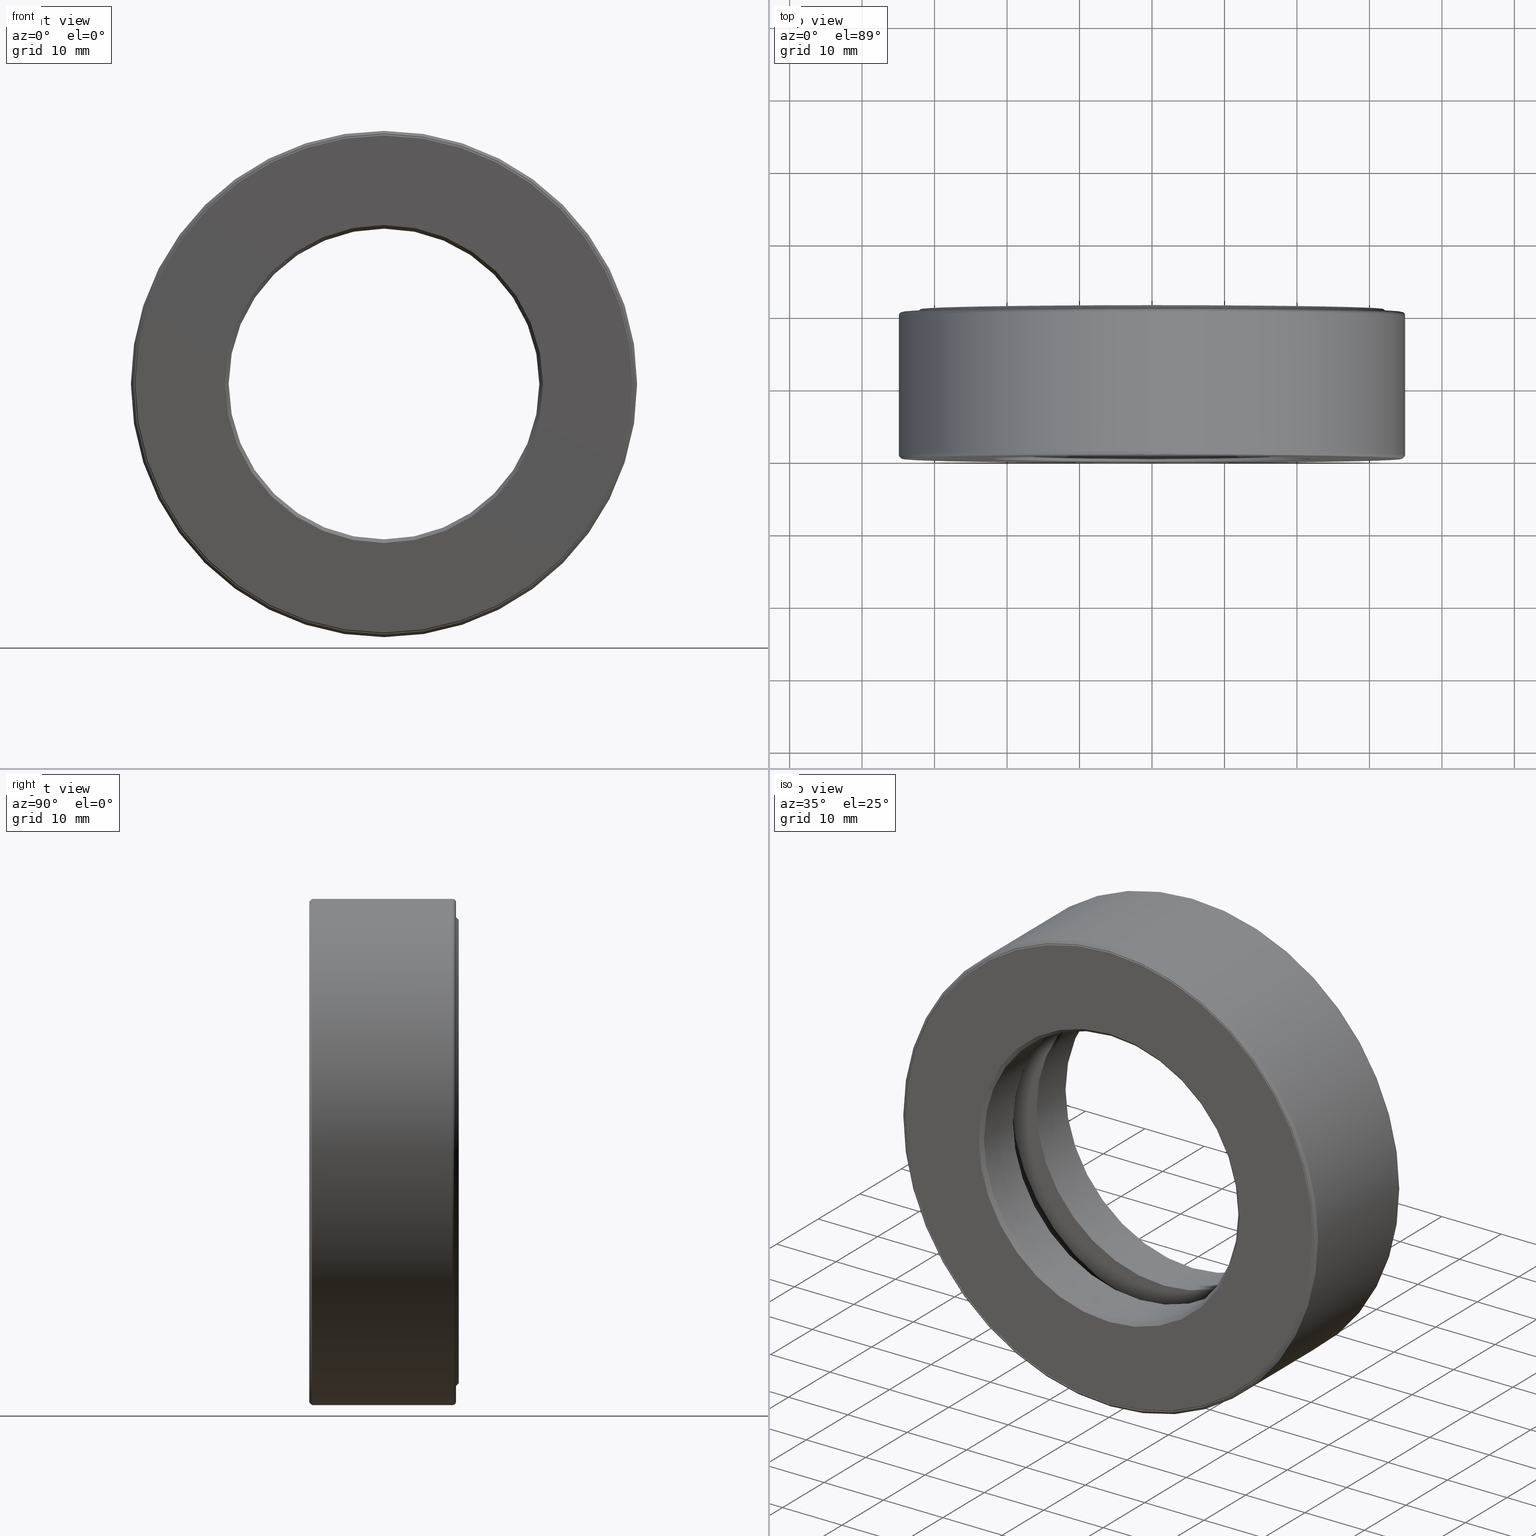
[diagram: canonical four-view strip — front | top / right | iso, engineering-drawing reading convention]
A machine part, canonical four-view strip (front | top / right | iso — engineering-drawing reading convention). The complete STEP part file that produces these views, byte-faithful:
ISO-10303-21;
HEADER;
FILE_DESCRIPTION (( 'STEP AP203' ),
    '1' );
FILE_NAME ('T-100-26.step',
    '2016-06-29T18:27:27',
    ( '' ),
    ( '' ),
    'SwSTEP 2.0',
    'SolidWorks 2016',
    '' );
FILE_SCHEMA (( 'CONFIG_CONTROL_DESIGN' ));
ENDSEC;

DATA;
#1 = FACE_OUTER_BOUND ( 'NONE', #556, .T. ) ;
#2 =( LENGTH_UNIT ( ) NAMED_UNIT ( * ) SI_UNIT ( $, .METRE. ) );
#3 = DIRECTION ( 'NONE',  ( -0.0000000000000000000, 1.000000000000000000, -0.0000000000000000000 ) ) ;
#4 = AXIS2_PLACEMENT_3D ( 'NONE', #38, #168, #274 ) ;
#5 = CARTESIAN_POINT ( 'NONE',  ( 0.0000000000000000000, 0.7974999999999998800, 1.294999999999999900 ) ) ;
#6 = DIRECTION ( 'NONE',  ( 0.0000000000000000000, 0.0000000000000000000, 1.000000000000000000 ) ) ;
#7 = LENGTH_MEASURE_WITH_UNIT ( LENGTH_MEASURE( 0.02539999999999999900 ), #2 );
#8 = PERSON_AND_ORGANIZATION_ROLE ( 'classification_officer' ) ;
#9 = ADVANCED_FACE ( 'NONE', ( #368, #179 ), #518, .F. ) ;
#10 = CIRCLE ( 'NONE', #503, 0.8437500000000000000 ) ;
#11 = AXIS2_PLACEMENT_3D ( 'NONE', #190, #492, #483 ) ;
#12 = ORIENTED_EDGE ( 'NONE', *, *, #283, .F. ) ;
#13 = DIRECTION ( 'NONE',  ( -0.0000000000000000000, 1.000000000000000000, -0.0000000000000000000 ) ) ;
#14 = DIRECTION ( 'NONE',  ( 0.0000000000000000000, 0.0000000000000000000, 1.000000000000000000 ) ) ;
#15 = COORDINATED_UNIVERSAL_TIME_OFFSET ( 5, 0, .BEHIND. ) ;
#16 = VERTEX_POINT ( 'NONE', #602 ) ;
#17 = FACE_OUTER_BOUND ( 'NONE', #603, .T. ) ;
#18 = EDGE_LOOP ( 'NONE', ( #511 ) ) ;
#19 = DIRECTION ( 'NONE',  ( 0.0000000000000000000, 0.0000000000000000000, 1.000000000000000000 ) ) ;
#20 = AXIS2_PLACEMENT_3D ( 'NONE', #184, #528, #231 ) ;
#21 = CARTESIAN_POINT ( 'NONE',  ( 6.088621761296492400E-017, 0.2937500000000001800, 0.0000000000000000000 ) ) ;
#22 = EDGE_LOOP ( 'NONE', ( #128 ) ) ;
#23 = AXIS2_PLACEMENT_3D ( 'NONE', #506, #457, #600 ) ;
#24 = VERTEX_POINT ( 'NONE', #419 ) ;
#25 = ORIENTED_EDGE ( 'NONE', *, *, #146, .F. ) ;
#26 = DIRECTION ( 'NONE',  ( 0.0000000000000000000, -1.000000000000000000, 0.0000000000000000000 ) ) ;
#27 = DIRECTION ( 'NONE',  ( 0.0000000000000000000, 0.0000000000000000000, 1.000000000000000000 ) ) ;
#28 = ORIENTED_EDGE ( 'NONE', *, *, #161, .T. ) ;
#29 = AXIS2_PLACEMENT_3D ( 'NONE', #68, #207, #113 ) ;
#30 = DIRECTION ( 'NONE',  ( -0.0000000000000000000, 1.000000000000000000, -0.0000000000000000000 ) ) ;
#31 = PERSON_AND_ORGANIZATION ( #321, #102 ) ;
#32 = FACE_OUTER_BOUND ( 'NONE', #425, .T. ) ;
#33 = CIRCLE ( 'NONE', #242, 1.347999999999999900 ) ;
#34 = DIRECTION ( 'NONE',  ( 0.0000000000000000000, 0.0000000000000000000, -1.000000000000000000 ) ) ;
#35 = ORIENTED_EDGE ( 'NONE', *, *, #114, .F. ) ;
#36 = CARTESIAN_POINT ( 'NONE',  ( 0.0000000000000000000, 0.5187499999999998200, 0.0000000000000000000 ) ) ;
#37 = CC_DESIGN_DATE_AND_TIME_ASSIGNMENT ( #596, #526, ( #317 ) ) ;
#38 = CARTESIAN_POINT ( 'NONE',  ( 0.0000000000000000000, 0.004999999999999966300, 0.0000000000000000000 ) ) ;
#39 = FACE_BOUND ( 'NONE', #226, .T. ) ;
#40 = AXIS2_PLACEMENT_3D ( 'NONE', #436, #245, #19 ) ;
#41 = CARTESIAN_POINT ( 'NONE',  ( 0.0000000000000000000, -6.189343110645596500E-017, 0.0000000000000000000 ) ) ;
#42 = CARTESIAN_POINT ( 'NONE',  ( 8.969279409578109900E-016, 0.5187499999999999300, 0.0000000000000000000 ) ) ;
#43 = FACE_BOUND ( 'NONE', #210, .T. ) ;
#44 = CARTESIAN_POINT ( 'NONE',  ( 0.0000000000000000000, 0.7774999999999998600, 1.355000000000000000 ) ) ;
#45 = FACE_OUTER_BOUND ( 'NONE', #268, .T. ) ;
#46 =( CONVERSION_BASED_UNIT ( 'INCH', #7 ) LENGTH_UNIT ( ) NAMED_UNIT ( #578 ) );
#47 = AXIS2_PLACEMENT_3D ( 'NONE', #160, #546, #311 ) ;
#48 = APPLICATION_CONTEXT ( 'configuration controlled 3d designs of mechanical parts and assemblies' ) ;
#49 = ORIENTED_EDGE ( 'NONE', *, *, #232, .F. ) ;
#50 = DIRECTION ( 'NONE',  ( 1.000000000000000000, 0.0000000000000000000, 0.0000000000000000000 ) ) ;
#51 = FACE_OUTER_BOUND ( 'NONE', #258, .T. ) ;
#52 = AXIS2_PLACEMENT_3D ( 'NONE', #460, #313, #553 ) ;
#53 = ORIENTED_EDGE ( 'NONE', *, *, #67, .T. ) ;
#54 = DIRECTION ( 'NONE',  ( 0.0000000000000000000, 0.0000000000000000000, 1.000000000000000000 ) ) ;
#55 = DIRECTION ( 'NONE',  ( 0.0000000000000000000, 0.0000000000000000000, 1.000000000000000000 ) ) ;
#56 = VERTEX_POINT ( 'NONE', #464 ) ;
#57 = EDGE_CURVE ( 'NONE', #510, #510, #237, .T. ) ;
#58 = SPHERICAL_SURFACE ( 'NONE', #187, 0.1874999999999999700 ) ;
#59 = DIRECTION ( 'NONE',  ( 0.0000000000000000000, 0.0000000000000000000, 1.000000000000000000 ) ) ;
#60 = EDGE_LOOP ( 'NONE', ( #25 ) ) ;
#61 = DIRECTION ( 'NONE',  ( -0.0000000000000000000, 1.000000000000000000, -0.0000000000000000000 ) ) ;
#62 = CIRCLE ( 'NONE', #84, 1.375000000000000000 ) ;
#63 = DIRECTION ( 'NONE',  ( -0.0000000000000000000, 1.000000000000000000, -0.0000000000000000000 ) ) ;
#64 = AXIS2_PLACEMENT_3D ( 'NONE', #76, #214, #453 ) ;
#65 = DIRECTION ( 'NONE',  ( 0.0000000000000000000, 0.0000000000000000000, 1.000000000000000000 ) ) ;
#66 = EDGE_LOOP ( 'NONE', ( #332 ) ) ;
#67 = EDGE_CURVE ( 'NONE', #386, #386, #295, .T. ) ;
#68 = CARTESIAN_POINT ( 'NONE',  ( 0.0000000000000000000, 0.0000000000000000000, 0.0000000000000000000 ) ) ;
#69 = VERTEX_POINT ( 'NONE', #137 ) ;
#70 = CIRCLE ( 'NONE', #40, 0.8437500000000000000 ) ;
#71 = DIRECTION ( 'NONE',  ( 0.0000000000000000000, 0.0000000000000000000, 1.000000000000000000 ) ) ;
#72 = ORIENTED_EDGE ( 'NONE', *, *, #209, .F. ) ;
#73 = EDGE_CURVE ( 'NONE', #583, #583, #33, .T. ) ;
#74 = DIRECTION ( 'NONE',  ( 0.0000000000000000000, 0.0000000000000000000, 1.000000000000000000 ) ) ;
#75 = EDGE_LOOP ( 'NONE', ( #35 ) ) ;
#76 = CARTESIAN_POINT ( 'NONE',  ( 0.0000000000000000000, 0.0000000000000000000, 0.0000000000000000000 ) ) ;
#77 = DIRECTION ( 'NONE',  ( -1.000000000000000000, 0.0000000000000000000, 6.982962677686263600E-015 ) ) ;
#78 =( GEOMETRIC_REPRESENTATION_CONTEXT ( 3 ) GLOBAL_UNCERTAINTY_ASSIGNED_CONTEXT ( ( #80 ) ) GLOBAL_UNIT_ASSIGNED_CONTEXT ( ( #46, #133, #605 ) ) REPRESENTATION_CONTEXT ( 'NONE', 'WORKASPACE' ) );
#79 = ORIENTED_EDGE ( 'NONE', *, *, #232, .T. ) ;
#80 = UNCERTAINTY_MEASURE_WITH_UNIT (LENGTH_MEASURE( 1.000000000000000100E-005 ), #46, 'distance_accuracy_value', 'NONE');
#81 = CARTESIAN_POINT ( 'NONE',  ( 1.158500000000000100, 0.4062499999999999400, -8.089762262099541000E-015 ) ) ;
#82 = CIRCLE ( 'NONE', #308, 1.259999999999999600 ) ;
#83 = FACE_OUTER_BOUND ( 'NONE', #18, .T. ) ;
#84 = AXIS2_PLACEMENT_3D ( 'NONE', #543, #585, #355 ) ;
#85 = ORIENTED_EDGE ( 'NONE', *, *, #73, .T. ) ;
#86 = CARTESIAN_POINT ( 'NONE',  ( 0.0000000000000000000, -6.016065055398661200E-017, 1.355000000000000000 ) ) ;
#87 = MANIFOLD_SOLID_BREP ( 'BALLS[2]', #504 ) ;
#88 = AXIS2_PLACEMENT_3D ( 'NONE', #81, #121, #77 ) ;
#89 = DIRECTION ( 'NONE',  ( 0.0000000000000000000, 0.0000000000000000000, 1.000000000000000000 ) ) ;
#90 = EDGE_LOOP ( 'NONE', ( #364 ) ) ;
#91 = ORIENTED_EDGE ( 'NONE', *, *, #126, .T. ) ;
#92 = CARTESIAN_POINT ( 'NONE',  ( 0.0000000000000000000, 0.7924999999999997600, 0.0000000000000000000 ) ) ;
#93 = PRODUCT ( 'T-100-26', 'T-100-26', '', ( #285 ) ) ;
#94 = CARTESIAN_POINT ( 'NONE',  ( 0.0000000000000000000, 0.5187499999999999300, 0.0000000000000000000 ) ) ;
#95 = PRODUCT_DEFINITION_FORMATION_WITH_SPECIFIED_SOURCE ( 'ANY', '', #93, .NOT_KNOWN. ) ;
#96 = ORIENTED_EDGE ( 'NONE', *, *, #538, .T. ) ;
#97 = MANIFOLD_SOLID_BREP ( 'Revolve2[1]', #357 ) ;
#98 = AXIS2_PLACEMENT_3D ( 'NONE', #186, #13, #530 ) ;
#99 = CIRCLE ( 'NONE', #292, 1.359999999999999900 ) ;
#100 = CARTESIAN_POINT ( 'NONE',  ( 0.0000000000000000000, 0.0000000000000000000, 0.0000000000000000000 ) ) ;
#101 = EDGE_LOOP ( 'NONE', ( #451 ) ) ;
#102 = ORGANIZATION ( 'UNSPECIFIED', 'UNSPECIFIED', '' ) ;
#103 = AXIS2_PLACEMENT_3D ( 'NONE', #145, #393, #344 ) ;
#104 = CIRCLE ( 'NONE', #98, 1.355000000000000000 ) ;
#105 = EDGE_LOOP ( 'NONE', ( #377 ) ) ;
#106 = CARTESIAN_POINT ( 'NONE',  ( 0.0000000000000000000, 0.4062499999999999400, 0.0000000000000000000 ) ) ;
#107 = CARTESIAN_POINT ( 'NONE',  ( 0.0000000000000000000, 0.0000000000000000000, 0.0000000000000000000 ) ) ;
#108 = CARTESIAN_POINT ( 'NONE',  ( 0.0000000000000000000, 0.0000000000000000000, 0.0000000000000000000 ) ) ;
#109 = CALENDAR_DATE ( 2016, 29, 6 ) ;
#110 = FACE_OUTER_BOUND ( 'NONE', #136, .T. ) ;
#111 = FACE_OUTER_BOUND ( 'NONE', #566, .T. ) ;
#112 = DIRECTION ( 'NONE',  ( 0.0000000000000000000, 0.0000000000000000000, 1.000000000000000000 ) ) ;
#113 = DIRECTION ( 'NONE',  ( 0.0000000000000000000, 0.0000000000000000000, 1.000000000000000000 ) ) ;
#114 = EDGE_CURVE ( 'NONE', #442, #442, #104, .T. ) ;
#115 = ORIENTED_EDGE ( 'NONE', *, *, #392, .F. ) ;
#116 = CARTESIAN_POINT ( 'NONE',  ( 0.0000000000000000000, 0.0000000000000000000, 0.0000000000000000000 ) ) ;
#117 = LOCAL_TIME ( 14, 27, 27.00000000000000000, #243 ) ;
#118 = DIRECTION ( 'NONE',  ( 0.0000000000000000000, 0.0000000000000000000, 1.000000000000000000 ) ) ;
#119 = SPHERICAL_SURFACE ( 'NONE', #47, 0.1874999999999999700 ) ;
#120 = CIRCLE ( 'NONE', #103, 1.294999999999999900 ) ;
#121 = DIRECTION ( 'NONE',  ( 6.982962677686263600E-015, -0.0000000000000000000, 1.000000000000000000 ) ) ;
#122 = ORIENTED_EDGE ( 'NONE', *, *, #57, .T. ) ;
#123 = CARTESIAN_POINT ( 'NONE',  ( 4.044881131049770500E-015, 0.4062499999999999400, 1.158500000000000100 ) ) ;
#124 = CIRCLE ( 'NONE', #233, 1.308500000000000200 ) ;
#125 = EDGE_LOOP ( 'NONE', ( #327 ) ) ;
#126 = EDGE_CURVE ( 'NONE', #524, #524, #563, .T. ) ;
#127 = CARTESIAN_POINT ( 'NONE',  ( 0.0000000000000000000, 0.0000000000000000000, 0.0000000000000000000 ) ) ;
#128 = ORIENTED_EDGE ( 'NONE', *, *, #507, .T. ) ;
#129 = LOCAL_TIME ( 14, 27, 27.00000000000000000, #15 ) ;
#130 = FACE_OUTER_BOUND ( 'NONE', #505, .T. ) ;
#131 = CYLINDRICAL_SURFACE ( 'NONE', #482, 1.355000000000000000 ) ;
#132 = ORIENTED_EDGE ( 'NONE', *, *, #529, .T. ) ;
#133 =( NAMED_UNIT ( * ) PLANE_ANGLE_UNIT ( ) SI_UNIT ( $, .RADIAN. ) );
#134 = AXIS2_PLACEMENT_3D ( 'NONE', #36, #595, #513 ) ;
#135 = CARTESIAN_POINT ( 'NONE',  ( 0.0000000000000000000, 0.5187499999999998200, 1.008500000000000000 ) ) ;
#136 = EDGE_LOOP ( 'NONE', ( #319 ) ) ;
#137 = CARTESIAN_POINT ( 'NONE',  ( 0.0000000000000000000, 0.01499999999999984000, 1.374999999999999300 ) ) ;
#138 = CARTESIAN_POINT ( 'NONE',  ( 0.0000000000000000000, 0.7974999999999998800, 0.0000000000000000000 ) ) ;
#139 = AXIS2_PLACEMENT_3D ( 'NONE', #363, #508, #219 ) ;
#140 = ADVANCED_FACE ( 'NONE', ( #45, #218 ), #144, .T. ) ;
#141 = PERSON_AND_ORGANIZATION_ROLE ( 'design_supplier' ) ;
#142 = CONICAL_SURFACE ( 'NONE', #290, 0.8437500000000000000, 0.7853981633974482800 ) ;
#143 = ADVANCED_FACE ( 'NONE', ( #189, #413 ), #178, .F. ) ;
#144 = PLANE ( 'NONE',  #455 ) ;
#145 = CARTESIAN_POINT ( 'NONE',  ( 0.0000000000000000000, 0.7974999999999998800, 0.0000000000000000000 ) ) ;
#146 = EDGE_CURVE ( 'NONE', #372, #372, #149, .T. ) ;
#147 = LOCAL_TIME ( 14, 27, 27.00000000000000000, #365 ) ;
#148 = FACE_OUTER_BOUND ( 'NONE', #525, .T. ) ;
#149 = CIRCLE ( 'NONE', #422, 0.8637500000000001300 ) ;
#150 = CARTESIAN_POINT ( 'NONE',  ( -1.213464339314931200E-014, 0.4062499999999999400, -1.158500000000000100 ) ) ;
#151 = DIRECTION ( 'NONE',  ( 0.0000000000000000000, -1.000000000000000000, 0.0000000000000000000 ) ) ;
#152 = AXIS2_PLACEMENT_3D ( 'NONE', #373, #174, #89 ) ;
#153 = CIRCLE ( 'NONE', #152, 1.355000000000000000 ) ;
#154 = EDGE_LOOP ( 'NONE', ( #115 ) ) ;
#155 = AXIS2_PLACEMENT_3D ( 'NONE', #537, #248, #388 ) ;
#156 = DIRECTION ( 'NONE',  ( -0.0000000000000000000, 1.000000000000000000, -0.0000000000000000000 ) ) ;
#157 = LOCAL_TIME ( 14, 27, 27.00000000000000000, #574 ) ;
#158 = FACE_OUTER_BOUND ( 'NONE', #211, .T. ) ;
#159 = CIRCLE ( 'NONE', #384, 1.349999999999999400 ) ;
#160 = CARTESIAN_POINT ( 'NONE',  ( -1.158500000000000100, 0.4062499999999999400, 0.0000000000000000000 ) ) ;
#161 = EDGE_CURVE ( 'NONE', #340, #340, #70, .T. ) ;
#162 = EDGE_LOOP ( 'NONE', ( #549 ) ) ;
#163 = CARTESIAN_POINT ( 'NONE',  ( -1.418662552022333100E-031, -6.102704083022128200E-017, 0.0000000000000000000 ) ) ;
#164 = CALENDAR_DATE ( 2016, 29, 6 ) ;
#165 = VERTEX_POINT ( 'NONE', #287 ) ;
#166 = EDGE_CURVE ( 'NONE', #568, #568, #307, .T. ) ;
#167 = ORIENTED_EDGE ( 'NONE', *, *, #410, .T. ) ;
#168 = DIRECTION ( 'NONE',  ( -0.0000000000000000000, 1.000000000000000000, -0.0000000000000000000 ) ) ;
#169 = CARTESIAN_POINT ( 'NONE',  ( 0.0000000000000000000, 0.2937500000000001800, 0.0000000000000000000 ) ) ;
#170 = VERTEX_POINT ( 'NONE', #44 ) ;
#171 = CARTESIAN_POINT ( 'NONE',  ( 0.0000000000000000000, -6.189343110645596500E-017, 1.359999999999999900 ) ) ;
#172 = FACE_OUTER_BOUND ( 'NONE', #289, .T. ) ;
#173 = EDGE_CURVE ( 'NONE', #323, #323, #120, .T. ) ;
#174 = DIRECTION ( 'NONE',  ( -0.0000000000000000000, 1.000000000000000000, -0.0000000000000000000 ) ) ;
#175 = ADVANCED_FACE ( 'NONE', ( #461, #555 ), #584, .F. ) ;
#176 = APPROVAL_ROLE ( '' ) ;
#177 = APPROVAL_DATE_TIME ( #329, #471 ) ;
#178 = PLANE ( 'NONE',  #400 ) ;
#179 = FACE_OUTER_BOUND ( 'NONE', #90, .T. ) ;
#180 = CARTESIAN_POINT ( 'NONE',  ( 0.0000000000000000000, 0.8125000000000000000, 1.259999999999999600 ) ) ;
#181 = ADVANCED_FACE ( 'NONE', ( #172, #111 ), #569, .F. ) ;
#182 = PRODUCT_DEFINITION ( 'UNKNOWN', '', #95, #456 ) ;
#183 = SECURITY_CLASSIFICATION_LEVEL ( 'unclassified' ) ;
#184 = CARTESIAN_POINT ( 'NONE',  ( 0.0000000000000000000, 0.7924999999999997600, 0.0000000000000000000 ) ) ;
#185 = ORIENTED_EDGE ( 'NONE', *, *, #217, .F. ) ;
#186 = CARTESIAN_POINT ( 'NONE',  ( 0.0000000000000000000, -6.016065055398661200E-017, 0.0000000000000000000 ) ) ;
#187 = AXIS2_PLACEMENT_3D ( 'NONE', #150, #299, #485 ) ;
#188 = SPHERICAL_SURFACE ( 'NONE', #88, 0.1874999999999999700 ) ;
#189 = FACE_BOUND ( 'NONE', #195, .T. ) ;
#190 = CARTESIAN_POINT ( 'NONE',  ( -6.471615710797515500E-016, 0.2937500000000001200, 0.0000000000000000000 ) ) ;
#191 = DIRECTION ( 'NONE',  ( 0.0000000000000000000, -0.0000000000000000000, -1.000000000000000000 ) ) ;
#192 = EDGE_LOOP ( 'NONE', ( #167 ) ) ;
#193 = APPROVAL_DATE_TIME ( #590, #439 ) ;
#194 = ORIENTED_EDGE ( 'NONE', *, *, #209, .T. ) ;
#195 = EDGE_LOOP ( 'NONE', ( #343 ) ) ;
#196 = DIRECTION ( 'NONE',  ( 0.0000000000000000000, 0.0000000000000000000, 1.000000000000000000 ) ) ;
#197 = ADVANCED_FACE ( 'NONE', ( #534, #592 ), #575, .F. ) ;
#198 = AXIS2_PLACEMENT_3D ( 'NONE', #390, #533, #196 ) ;
#199 = DIRECTION ( 'NONE',  ( -0.0000000000000000000, 1.000000000000000000, -0.0000000000000000000 ) ) ;
#200 = AXIS2_PLACEMENT_3D ( 'NONE', #42, #402, #316 ) ;
#201 = EDGE_LOOP ( 'NONE', ( #594 ) ) ;
#202 = ADVANCED_FACE ( 'NONE', ( #345, #315 ), #303, .F. ) ;
#203 = DIRECTION ( 'NONE',  ( -0.0000000000000000000, 1.000000000000000000, -0.0000000000000000000 ) ) ;
#204 = CARTESIAN_POINT ( 'NONE',  ( 0.0000000000000000000, 0.4062499999999999400, 0.0000000000000000000 ) ) ;
#205 = CONICAL_SURFACE ( 'NONE', #540, 1.359999999999999900, 0.7853981633974326200 ) ;
#206 = TOROIDAL_SURFACE ( 'NONE', #571, 1.158500000000000100, 0.1874999999999999700 ) ;
#207 = DIRECTION ( 'NONE',  ( -0.0000000000000000000, 1.000000000000000000, -0.0000000000000000000 ) ) ;
#208 = AXIS2_PLACEMENT_3D ( 'NONE', #138, #3, #476 ) ;
#209 = EDGE_CURVE ( 'NONE', #554, #554, #341, .T. ) ;
#210 = EDGE_LOOP ( 'NONE', ( #296 ) ) ;
#211 = EDGE_LOOP ( 'NONE', ( #85 ) ) ;
#212 = CC_DESIGN_PERSON_AND_ORGANIZATION_ASSIGNMENT ( #516, #376, ( #95 ) ) ;
#213 = EDGE_LOOP ( 'NONE', ( #91 ) ) ;
#214 = DIRECTION ( 'NONE',  ( -0.0000000000000000000, 1.000000000000000000, -0.0000000000000000000 ) ) ;
#215 = DIRECTION ( 'NONE',  ( -0.0000000000000000000, 1.000000000000000000, 0.0000000000000000000 ) ) ;
#216 = CIRCLE ( 'NONE', #304, 0.8637499999999999100 ) ;
#217 = EDGE_CURVE ( 'NONE', #170, #170, #479, .T. ) ;
#218 = FACE_BOUND ( 'NONE', #60, .T. ) ;
#219 = DIRECTION ( 'NONE',  ( 0.0000000000000000000, 0.0000000000000000000, 1.000000000000000000 ) ) ;
#220 = MANIFOLD_SOLID_BREP ( 'BALLS[3]', #361 ) ;
#221 = CARTESIAN_POINT ( 'NONE',  ( 0.0000000000000000000, 0.5187499999999999300, 1.347999999999999900 ) ) ;
#222 = EDGE_LOOP ( 'NONE', ( #122 ) ) ;
#223 = CALENDAR_DATE ( 2016, 29, 6 ) ;
#224 = APPLICATION_CONTEXT ( 'configuration controlled 3d designs of mechanical parts and assemblies' ) ;
#225 = CLOSED_SHELL ( 'NONE', ( #389 ) ) ;
#226 = EDGE_LOOP ( 'NONE', ( #79 ) ) ;
#227 = DATE_TIME_ROLE ( 'creation_date' ) ;
#228 = CARTESIAN_POINT ( 'NONE',  ( 0.0000000000000000000, 0.7974999999999998800, 0.0000000000000000000 ) ) ;
#229 = CARTESIAN_POINT ( 'NONE',  ( 0.0000000000000000000, 0.2937500000000001800, 0.8437500000000000000 ) ) ;
#230 = EDGE_LOOP ( 'NONE', ( #300 ) ) ;
#231 = DIRECTION ( 'NONE',  ( 0.0000000000000000000, 0.0000000000000000000, 1.000000000000000000 ) ) ;
#232 = EDGE_CURVE ( 'NONE', #544, #544, #99, .T. ) ;
#233 = AXIS2_PLACEMENT_3D ( 'NONE', #512, #598, #449 ) ;
#234 = APPROVAL_ROLE ( '' ) ;
#235 = ADVANCED_FACE ( 'NONE', ( #374, #83 ), #353, .F. ) ;
#236 = CIRCLE ( 'NONE', #134, 1.008500000000000000 ) ;
#237 = CIRCLE ( 'NONE', #20, 0.8437500000000000000 ) ;
#238 = CARTESIAN_POINT ( 'NONE',  ( 0.0000000000000000000, 0.2937500000000002300, 0.0000000000000000000 ) ) ;
#239 = CLOSED_SHELL ( 'NONE', ( #519, #235, #475, #9, #604, #140, #301, #470 ) ) ;
#240 = ADVANCED_FACE ( 'NONE', ( ), #58, .T. ) ;
#241 = DIRECTION ( 'NONE',  ( 0.0000000000000000000, -0.0000000000000000000, -1.000000000000000000 ) ) ;
#242 = AXIS2_PLACEMENT_3D ( 'NONE', #94, #481, #336 ) ;
#243 = COORDINATED_UNIVERSAL_TIME_OFFSET ( 5, 0, .BEHIND. ) ;
#244 = VERTEX_POINT ( 'NONE', #180 ) ;
#245 = DIRECTION ( 'NONE',  ( -0.0000000000000000000, 1.000000000000000000, -0.0000000000000000000 ) ) ;
#246 = CIRCLE ( 'NONE', #432, 1.374999999999999300 ) ;
#247 = ORIENTED_EDGE ( 'NONE', *, *, #266, .T. ) ;
#248 = DIRECTION ( 'NONE',  ( -0.0000000000000000000, 1.000000000000000000, -0.0000000000000000000 ) ) ;
#249 = CARTESIAN_POINT ( 'NONE',  ( 0.0000000000000000000, 0.0000000000000000000, 0.0000000000000000000 ) ) ;
#250 = EDGE_LOOP ( 'NONE', ( #284 ) ) ;
#251 = DIRECTION ( 'NONE',  ( -0.0000000000000000000, 1.000000000000000000, -0.0000000000000000000 ) ) ;
#252 = CC_DESIGN_PERSON_AND_ORGANIZATION_ASSIGNMENT ( #359, #141, ( #95 ) ) ;
#253 = APPROVAL_PERSON_ORGANIZATION ( #276, #314, #176 ) ;
#254 = VERTEX_POINT ( 'NONE', #281 ) ;
#255 = ORIENTED_EDGE ( 'NONE', *, *, #302, .F. ) ;
#256 = EDGE_CURVE ( 'NONE', #24, #24, #159, .T. ) ;
#257 = DIRECTION ( 'NONE',  ( 0.0000000000000000000, 0.0000000000000000000, -1.000000000000000000 ) ) ;
#258 = EDGE_LOOP ( 'NONE', ( #385 ) ) ;
#259 = CARTESIAN_POINT ( 'NONE',  ( 0.0000000000000000000, -5.975917486140575200E-017, 0.0000000000000000000 ) ) ;
#260 = PERSON_AND_ORGANIZATION ( #321, #102 ) ;
#261 = DIRECTION ( 'NONE',  ( 0.0000000000000000000, -1.000000000000000000, 0.0000000000000000000 ) ) ;
#262 = FACE_OUTER_BOUND ( 'NONE', #338, .T. ) ;
#263 = FACE_BOUND ( 'NONE', #125, .T. ) ;
#264 = EDGE_LOOP ( 'NONE', ( #484 ) ) ;
#265 = PLANE ( 'NONE',  #601 ) ;
#266 = EDGE_CURVE ( 'NONE', #69, #69, #246, .T. ) ;
#267 = DIRECTION ( 'NONE',  ( 0.0000000000000000000, 0.0000000000000000000, 1.000000000000000000 ) ) ;
#268 = EDGE_LOOP ( 'NONE', ( #428 ) ) ;
#269 = FACE_OUTER_BOUND ( 'NONE', #66, .T. ) ;
#270 = DIRECTION ( 'NONE',  ( -0.0000000000000000000, 1.000000000000000000, -0.0000000000000000000 ) ) ;
#271 = AXIS2_PLACEMENT_3D ( 'NONE', #163, #408, #552 ) ;
#272 = EDGE_LOOP ( 'NONE', ( #381 ) ) ;
#273 = PLANE ( 'NONE',  #565 ) ;
#274 = DIRECTION ( 'NONE',  ( 0.0000000000000000000, 0.0000000000000000000, 1.000000000000000000 ) ) ;
#275 = CARTESIAN_POINT ( 'NONE',  ( 0.0000000000000000000, 0.7244999999999999200, 1.347999999999999900 ) ) ;
#276 = PERSON_AND_ORGANIZATION ( #321, #102 ) ;
#277 = ADVANCED_FACE ( 'NONE', ( #545, #280 ), #599, .T. ) ;
#278 = FACE_BOUND ( 'NONE', #417, .T. ) ;
#279 = AXIS2_PLACEMENT_3D ( 'NONE', #238, #426, #567 ) ;
#280 = FACE_OUTER_BOUND ( 'NONE', #264, .T. ) ;
#281 = CARTESIAN_POINT ( 'NONE',  ( 0.0000000000000000000, 0.7774999999999998600, 1.375000000000000000 ) ) ;
#282 = PERSON_AND_ORGANIZATION_ROLE ( 'design_owner' ) ;
#283 = EDGE_CURVE ( 'NONE', #306, #306, #468, .T. ) ;
#284 = ORIENTED_EDGE ( 'NONE', *, *, #283, .T. ) ;
#285 = MECHANICAL_CONTEXT ( 'NONE', #224, 'mechanical' ) ;
#286 = ADVANCED_FACE ( 'NONE', ( #387, #437 ), #206, .F. ) ;
#287 = CARTESIAN_POINT ( 'NONE',  ( 0.0000000000000000000, 0.2937500000000001200, 1.355000000000000000 ) ) ;
#288 = CIRCLE ( 'NONE', #52, 1.294999999999999900 ) ;
#289 = EDGE_LOOP ( 'NONE', ( #72 ) ) ;
#290 = AXIS2_PLACEMENT_3D ( 'NONE', #92, #517, #334 ) ;
#291 = ADVANCED_FACE ( 'NONE', ( #488, #444 ), #131, .F. ) ;
#292 = AXIS2_PLACEMENT_3D ( 'NONE', #431, #63, #14 ) ;
#293 = LOCAL_TIME ( 14, 27, 27.00000000000000000, #379 ) ;
#294 = VERTEX_POINT ( 'NONE', #229 ) ;
#295 = CIRCLE ( 'NONE', #208, 1.355000000000000000 ) ;
#296 = ORIENTED_EDGE ( 'NONE', *, *, #114, .T. ) ;
#297 = DIRECTION ( 'NONE',  ( 0.0000000000000000000, 0.0000000000000000000, 1.000000000000000000 ) ) ;
#298 = AXIS2_PLACEMENT_3D ( 'NONE', #123, #318, #454 ) ;
#299 = DIRECTION ( 'NONE',  ( 1.000000000000000000, 0.0000000000000000000, -1.047444401652940600E-014 ) ) ;
#300 = ORIENTED_EDGE ( 'NONE', *, *, #589, .F. ) ;
#301 = ADVANCED_FACE ( 'NONE', ( #498, #263 ), #576, .T. ) ;
#302 = EDGE_CURVE ( 'NONE', #254, #254, #62, .T. ) ;
#303 = PLANE ( 'NONE',  #354 ) ;
#304 = AXIS2_PLACEMENT_3D ( 'NONE', #127, #558, #328 ) ;
#305 = DIRECTION ( 'NONE',  ( -0.0000000000000000000, 1.000000000000000000, -0.0000000000000000000 ) ) ;
#306 = VERTEX_POINT ( 'NONE', #515 ) ;
#307 = CIRCLE ( 'NONE', #198, 1.347999999999999900 ) ;
#308 = AXIS2_PLACEMENT_3D ( 'NONE', #587, #30, #356 ) ;
#309 = CARTESIAN_POINT ( 'NONE',  ( -1.304601928488556500E-032, -2.987958743070287600E-017, 0.0000000000000000000 ) ) ;
#310 = EDGE_LOOP ( 'NONE', ( #490 ) ) ;
#311 = DIRECTION ( 'NONE',  ( 1.000000000000000000, 0.0000000000000000000, 0.0000000000000000000 ) ) ;
#312 = CALENDAR_DATE ( 2016, 29, 6 ) ;
#313 = DIRECTION ( 'NONE',  ( -0.0000000000000000000, 1.000000000000000000, -0.0000000000000000000 ) ) ;
#314 = APPROVAL ( #469, 'UNSPECIFIED' ) ;
#315 = FACE_OUTER_BOUND ( 'NONE', #213, .T. ) ;
#316 = DIRECTION ( 'NONE',  ( 0.0000000000000000000, -0.0000000000000000000, -1.000000000000000000 ) ) ;
#317 = SECURITY_CLASSIFICATION ( '', '', #183 ) ;
#318 = DIRECTION ( 'NONE',  ( -1.000000000000000000, 0.0000000000000000000, 3.491481338843131800E-015 ) ) ;
#319 = ORIENTED_EDGE ( 'NONE', *, *, #266, .F. ) ;
#320 = PLANE ( 'NONE',  #271 ) ;
#321 = PERSON ( 'UNSPECIFIED', 'UNSPECIFIED', 'UNSPECIFIED', ('UNSPECIFIED'), ('UNSPECIFIED'), ('UNSPECIFIED') ) ;
#322 = AXIS2_PLACEMENT_3D ( 'NONE', #100, #570, #6 ) ;
#323 = VERTEX_POINT ( 'NONE', #5 ) ;
#324 = FACE_OUTER_BOUND ( 'NONE', #101, .T. ) ;
#325 = CARTESIAN_POINT ( 'NONE',  ( 0.0000000000000000000, 0.7974999999999998800, 1.355000000000000000 ) ) ;
#326 = DIRECTION ( 'NONE',  ( 0.0000000000000000000, 0.0000000000000000000, 1.000000000000000000 ) ) ;
#327 = ORIENTED_EDGE ( 'NONE', *, *, #370, .F. ) ;
#328 = DIRECTION ( 'NONE',  ( 0.0000000000000000000, 0.0000000000000000000, 1.000000000000000000 ) ) ;
#329 = DATE_AND_TIME ( #109, #147 ) ;
#330 = CC_DESIGN_SECURITY_CLASSIFICATION ( #317, ( #95 ) ) ;
#331 = ADVANCED_FACE ( 'NONE', ( #1, #450 ), #265, .F. ) ;
#332 = ORIENTED_EDGE ( 'NONE', *, *, #146, .T. ) ;
#333 = APPROVAL_ROLE ( '' ) ;
#334 = DIRECTION ( 'NONE',  ( 0.0000000000000000000, 0.0000000000000000000, 1.000000000000000000 ) ) ;
#335 = ADVANCED_FACE ( 'NONE', ( #398, #17 ), #532, .T. ) ;
#336 = DIRECTION ( 'NONE',  ( 0.0000000000000000000, 0.0000000000000000000, 1.000000000000000000 ) ) ;
#337 = AXIS2_PLACEMENT_3D ( 'NONE', #249, #61, #350 ) ;
#338 = EDGE_LOOP ( 'NONE', ( #421 ) ) ;
#339 = VERTEX_POINT ( 'NONE', #411 ) ;
#340 = VERTEX_POINT ( 'NONE', #416 ) ;
#341 = CIRCLE ( 'NONE', #559, 0.8437499999999998900 ) ;
#342 = AXIS2_PLACEMENT_3D ( 'NONE', #396, #261, #34 ) ;
#343 = ORIENTED_EDGE ( 'NONE', *, *, #173, .F. ) ;
#344 = DIRECTION ( 'NONE',  ( 0.0000000000000000000, 0.0000000000000000000, 1.000000000000000000 ) ) ;
#345 = FACE_BOUND ( 'NONE', #154, .T. ) ;
#346 = EDGE_LOOP ( 'NONE', ( #12 ) ) ;
#347 = CARTESIAN_POINT ( 'NONE',  ( 0.0000000000000000000, 0.02000000000000019800, 0.0000000000000000000 ) ) ;
#348 = DIRECTION ( 'NONE',  ( 0.0000000000000000000, 0.0000000000000000000, 1.000000000000000000 ) ) ;
#349 = ORIENTED_EDGE ( 'NONE', *, *, #217, .T. ) ;
#350 = DIRECTION ( 'NONE',  ( 0.0000000000000000000, 0.0000000000000000000, 1.000000000000000000 ) ) ;
#351 = CC_DESIGN_PERSON_AND_ORGANIZATION_ASSIGNMENT ( #260, #8, ( #317 ) ) ;
#352 = FACE_BOUND ( 'NONE', #429, .T. ) ;
#353 = TOROIDAL_SURFACE ( 'NONE', #466, 1.158500000000000100, 0.1875000000000000800 ) ;
#354 = AXIS2_PLACEMENT_3D ( 'NONE', #21, #151, #241 ) ;
#355 = DIRECTION ( 'NONE',  ( 0.0000000000000000000, 0.0000000000000000000, 1.000000000000000000 ) ) ;
#356 = DIRECTION ( 'NONE',  ( 0.0000000000000000000, 0.0000000000000000000, 1.000000000000000000 ) ) ;
#357 = CLOSED_SHELL ( 'NONE', ( #286, #197, #175, #423, #378, #143, #277, #335, #586, #531, #291, #434, #331, #382, #181, #202 ) ) ;
#358 = DIRECTION ( 'NONE',  ( -0.0000000000000000000, 1.000000000000000000, -0.0000000000000000000 ) ) ;
#359 = PERSON_AND_ORGANIZATION ( #321, #102 ) ;
#360 = FACE_OUTER_BOUND ( 'NONE', #162, .T. ) ;
#361 = CLOSED_SHELL ( 'NONE', ( #240 ) ) ;
#362 = PRODUCT_RELATED_PRODUCT_CATEGORY ( 'detail', '', ( #93 ) ) ;
#363 = CARTESIAN_POINT ( 'NONE',  ( 0.0000000000000000000, -5.975917486140575200E-017, 0.0000000000000000000 ) ) ;
#364 = ORIENTED_EDGE ( 'NONE', *, *, #161, .F. ) ;
#365 = COORDINATED_UNIVERSAL_TIME_OFFSET ( 5, 0, .BEHIND. ) ;
#366 = AXIS2_PLACEMENT_3D ( 'NONE', #523, #326, #50 ) ;
#367 = SPHERICAL_SURFACE ( 'NONE', #298, 0.1874999999999999700 ) ;
#368 = FACE_OUTER_BOUND ( 'NONE', #222, .T. ) ;
#369 = CARTESIAN_POINT ( 'NONE',  ( 0.0000000000000000000, 0.7774999999999998600, 1.294999999999999900 ) ) ;
#370 = EDGE_CURVE ( 'NONE', #244, #244, #82, .T. ) ;
#371 = APPROVAL_PERSON_ORGANIZATION ( #477, #439, #234 ) ;
#372 = VERTEX_POINT ( 'NONE', #414 ) ;
#373 = CARTESIAN_POINT ( 'NONE',  ( 0.0000000000000000000, 0.2937500000000001200, 0.0000000000000000000 ) ) ;
#374 = FACE_OUTER_BOUND ( 'NONE', #192, .T. ) ;
#375 = EDGE_LOOP ( 'NONE', ( #255 ) ) ;
#376 = PERSON_AND_ORGANIZATION_ROLE ( 'creator' ) ;
#377 = ORIENTED_EDGE ( 'NONE', *, *, #589, .T. ) ;
#378 = ADVANCED_FACE ( 'NONE', ( #324, #360 ), #502, .F. ) ;
#379 = COORDINATED_UNIVERSAL_TIME_OFFSET ( 5, 0, .BEHIND. ) ;
#380 = SHAPE_DEFINITION_REPRESENTATION ( #480, #582 ) ;
#381 = ORIENTED_EDGE ( 'NONE', *, *, #67, .F. ) ;
#382 = ADVANCED_FACE ( 'NONE', ( #391, #541 ), #405, .F. ) ;
#383 = CARTESIAN_POINT ( 'NONE',  ( 0.0000000000000000000, 0.8125000000000000000, 0.0000000000000000000 ) ) ;
#384 = AXIS2_PLACEMENT_3D ( 'NONE', #259, #495, #401 ) ;
#385 = ORIENTED_EDGE ( 'NONE', *, *, #166, .F. ) ;
#386 = VERTEX_POINT ( 'NONE', #325 ) ;
#387 = FACE_OUTER_BOUND ( 'NONE', #310, .T. ) ;
#388 = DIRECTION ( 'NONE',  ( 0.0000000000000000000, 0.0000000000000000000, 1.000000000000000000 ) ) ;
#389 = ADVANCED_FACE ( 'NONE', ( ), #119, .T. ) ;
#390 = CARTESIAN_POINT ( 'NONE',  ( 0.0000000000000000000, 0.7244999999999999200, 0.0000000000000000000 ) ) ;
#391 = FACE_OUTER_BOUND ( 'NONE', #230, .T. ) ;
#392 = EDGE_CURVE ( 'NONE', #294, #294, #10, .T. ) ;
#393 = DIRECTION ( 'NONE',  ( -0.0000000000000000000, 1.000000000000000000, -0.0000000000000000000 ) ) ;
#394 = CC_DESIGN_APPROVAL ( #314, ( #182 ) ) ;
#395 = DATE_AND_TIME ( #223, #293 ) ;
#396 = CARTESIAN_POINT ( 'NONE',  ( 0.0000000000000000000, 0.02000000000000019800, 0.0000000000000000000 ) ) ;
#397 = FACE_OUTER_BOUND ( 'NONE', #491, .T. ) ;
#398 = FACE_OUTER_BOUND ( 'NONE', #375, .T. ) ;
#399 = EDGE_LOOP ( 'NONE', ( #349 ) ) ;
#400 = AXIS2_PLACEMENT_3D ( 'NONE', #228, #564, #191 ) ;
#401 = DIRECTION ( 'NONE',  ( 0.0000000000000000000, 0.0000000000000000000, 1.000000000000000000 ) ) ;
#402 = DIRECTION ( 'NONE',  ( 0.0000000000000000000, -1.000000000000000000, 0.0000000000000000000 ) ) ;
#403 = ORIENTED_EDGE ( 'NONE', *, *, #256, .F. ) ;
#404 = CARTESIAN_POINT ( 'NONE',  ( 0.0000000000000000000, 0.7774999999999998600, 0.0000000000000000000 ) ) ;
#405 = CONICAL_SURFACE ( 'NONE', #342, 0.8437499999999998900, 0.7853981633974449500 ) ;
#406 = DIRECTION ( 'NONE',  ( 0.0000000000000000000, 0.0000000000000000000, 1.000000000000000000 ) ) ;
#407 = ORIENTED_EDGE ( 'NONE', *, *, #256, .T. ) ;
#408 = DIRECTION ( 'NONE',  ( -0.0000000000000000000, 1.000000000000000000, 0.0000000000000000000 ) ) ;
#409 = PLANE ( 'NONE',  #23 ) ;
#410 = EDGE_CURVE ( 'NONE', #420, #420, #236, .T. ) ;
#411 = CARTESIAN_POINT ( 'NONE',  ( 0.0000000000000000000, 0.0000000000000000000, 0.8637499999999999100 ) ) ;
#412 = VERTEX_POINT ( 'NONE', #369 ) ;
#413 = FACE_OUTER_BOUND ( 'NONE', #473, .T. ) ;
#414 = CARTESIAN_POINT ( 'NONE',  ( 0.0000000000000000000, 0.8125000000000000000, 0.8637500000000001300 ) ) ;
#415 = ADVANCED_FACE ( 'NONE', ( ), #367, .T. ) ;
#416 = CARTESIAN_POINT ( 'NONE',  ( 0.0000000000000000000, 0.5187499999999999300, 0.8437500000000000000 ) ) ;
#417 = EDGE_LOOP ( 'NONE', ( #535 ) ) ;
#418 = APPLICATION_PROTOCOL_DEFINITION ( 'international standard', 'config_control_design', 1994, #48 ) ;
#419 = CARTESIAN_POINT ( 'NONE',  ( 0.0000000000000000000, -5.975917486140575200E-017, 1.349999999999999400 ) ) ;
#420 = VERTEX_POINT ( 'NONE', #135 ) ;
#421 = ORIENTED_EDGE ( 'NONE', *, *, #435, .F. ) ;
#422 = AXIS2_PLACEMENT_3D ( 'NONE', #573, #199, #297 ) ;
#423 = ADVANCED_FACE ( 'NONE', ( #130, #487 ), #273, .F. ) ;
#424 = CC_DESIGN_DATE_AND_TIME_ASSIGNMENT ( #486, #227, ( #182 ) ) ;
#425 = EDGE_LOOP ( 'NONE', ( #514 ) ) ;
#426 = DIRECTION ( 'NONE',  ( -0.0000000000000000000, 1.000000000000000000, -0.0000000000000000000 ) ) ;
#427 = FACE_BOUND ( 'NONE', #465, .T. ) ;
#428 = ORIENTED_EDGE ( 'NONE', *, *, #370, .T. ) ;
#429 = EDGE_LOOP ( 'NONE', ( #407 ) ) ;
#430 = DIRECTION ( 'NONE',  ( -0.0000000000000000000, 1.000000000000000000, -0.0000000000000000000 ) ) ;
#431 = CARTESIAN_POINT ( 'NONE',  ( 0.0000000000000000000, -6.189343110645596500E-017, 0.0000000000000000000 ) ) ;
#432 = AXIS2_PLACEMENT_3D ( 'NONE', #588, #203, #27 ) ;
#433 = EDGE_LOOP ( 'NONE', ( #447 ) ) ;
#434 = ADVANCED_FACE ( 'NONE', ( #262, #352 ), #459, .T. ) ;
#435 = EDGE_CURVE ( 'NONE', #16, #16, #496, .T. ) ;
#436 = CARTESIAN_POINT ( 'NONE',  ( 0.0000000000000000000, 0.5187499999999999300, 0.0000000000000000000 ) ) ;
#437 = FACE_OUTER_BOUND ( 'NONE', #250, .T. ) ;
#438 = CARTESIAN_POINT ( 'NONE',  ( 0.0000000000000000000, 0.2937500000000001200, 0.0000000000000000000 ) ) ;
#439 = APPROVAL ( #474, 'UNSPECIFIED' ) ;
#440 = EDGE_LOOP ( 'NONE', ( #96 ) ) ;
#441 = DIRECTION ( 'NONE',  ( 0.0000000000000000000, 0.0000000000000000000, 1.000000000000000000 ) ) ;
#442 = VERTEX_POINT ( 'NONE', #86 ) ;
#443 = AXIS2_PLACEMENT_3D ( 'NONE', #500, #501, #71 ) ;
#444 = FACE_OUTER_BOUND ( 'NONE', #593, .T. ) ;
#445 = DIRECTION ( 'NONE',  ( -0.0000000000000000000, 1.000000000000000000, 0.0000000000000000000 ) ) ;
#446 = DIRECTION ( 'NONE',  ( 0.0000000000000000000, 0.0000000000000000000, 1.000000000000000000 ) ) ;
#447 = ORIENTED_EDGE ( 'NONE', *, *, #538, .F. ) ;
#448 = PERSON_AND_ORGANIZATION ( #321, #102 ) ;
#449 = DIRECTION ( 'NONE',  ( 0.0000000000000000000, 0.0000000000000000000, 1.000000000000000000 ) ) ;
#450 = FACE_BOUND ( 'NONE', #105, .T. ) ;
#451 = ORIENTED_EDGE ( 'NONE', *, *, #507, .F. ) ;
#452 = CC_DESIGN_APPROVAL ( #471, ( #95 ) ) ;
#453 = DIRECTION ( 'NONE',  ( 0.0000000000000000000, 0.0000000000000000000, 1.000000000000000000 ) ) ;
#454 = DIRECTION ( 'NONE',  ( -3.491481338843131800E-015, 0.0000000000000000000, -1.000000000000000000 ) ) ;
#455 = AXIS2_PLACEMENT_3D ( 'NONE', #383, #522, #55 ) ;
#456 = DESIGN_CONTEXT ( 'detailed design', #48, 'design' ) ;
#457 = DIRECTION ( 'NONE',  ( 0.0000000000000000000, -1.000000000000000000, 0.0000000000000000000 ) ) ;
#458 = CC_DESIGN_APPROVAL ( #439, ( #317 ) ) ;
#459 = CONICAL_SURFACE ( 'NONE', #139, 1.349999999999999400, 0.7853981633974813600 ) ;
#460 = CARTESIAN_POINT ( 'NONE',  ( 0.0000000000000000000, 0.7774999999999998600, 0.0000000000000000000 ) ) ;
#461 = FACE_OUTER_BOUND ( 'NONE', #433, .T. ) ;
#462 = CARTESIAN_POINT ( 'NONE',  ( 0.0000000000000000000, 0.7924999999999997600, 0.8437500000000000000 ) ) ;
#463 = ADVANCED_FACE ( 'NONE', ( ), #188, .T. ) ;
#464 = CARTESIAN_POINT ( 'NONE',  ( 0.0000000000000000000, 0.5187499999999998200, 1.308500000000000200 ) ) ;
#465 = EDGE_LOOP ( 'NONE', ( #132 ) ) ;
#466 = AXIS2_PLACEMENT_3D ( 'NONE', #106, #430, #348 ) ;
#467 = CARTESIAN_POINT ( 'NONE',  ( 0.0000000000000000000, 0.2937500000000002300, 1.008500000000000000 ) ) ;
#468 = CIRCLE ( 'NONE', #494, 1.308500000000000200 ) ;
#469 = APPROVAL_STATUS ( 'not_yet_approved' ) ;
#470 = ADVANCED_FACE ( 'NONE', ( #158, #51 ), #597, .T. ) ;
#471 = APPROVAL ( #562, 'UNSPECIFIED' ) ;
#472 = DIRECTION ( 'NONE',  ( -0.0000000000000000000, 1.000000000000000000, -0.0000000000000000000 ) ) ;
#473 = EDGE_LOOP ( 'NONE', ( #53 ) ) ;
#474 = APPROVAL_STATUS ( 'not_yet_approved' ) ;
#475 = ADVANCED_FACE ( 'NONE', ( #478, #32 ), #409, .T. ) ;
#476 = DIRECTION ( 'NONE',  ( 0.0000000000000000000, 0.0000000000000000000, 1.000000000000000000 ) ) ;
#477 = PERSON_AND_ORGANIZATION ( #321, #102 ) ;
#478 = FACE_BOUND ( 'NONE', #548, .T. ) ;
#479 = CIRCLE ( 'NONE', #155, 1.355000000000000000 ) ;
#480 = PRODUCT_DEFINITION_SHAPE ( 'NONE', 'NONE',  #182 ) ;
#481 = DIRECTION ( 'NONE',  ( -0.0000000000000000000, 1.000000000000000000, -0.0000000000000000000 ) ) ;
#482 = AXIS2_PLACEMENT_3D ( 'NONE', #108, #542, #118 ) ;
#483 = DIRECTION ( 'NONE',  ( 0.0000000000000000000, -0.0000000000000000000, -1.000000000000000000 ) ) ;
#484 = ORIENTED_EDGE ( 'NONE', *, *, #302, .T. ) ;
#485 = DIRECTION ( 'NONE',  ( 1.047444401652940600E-014, 0.0000000000000000000, 1.000000000000000000 ) ) ;
#486 = DATE_AND_TIME ( #312, #157 ) ;
#487 = FACE_BOUND ( 'NONE', #22, .T. ) ;
#488 = FACE_OUTER_BOUND ( 'NONE', #75, .T. ) ;
#489 = MANIFOLD_SOLID_BREP ( 'BALLS[1]', #521 ) ;
#490 = ORIENTED_EDGE ( 'NONE', *, *, #126, .F. ) ;
#491 = EDGE_LOOP ( 'NONE', ( #572 ) ) ;
#492 = DIRECTION ( 'NONE',  ( 0.0000000000000000000, -1.000000000000000000, 0.0000000000000000000 ) ) ;
#493 = APPROVAL_DATE_TIME ( #395, #314 ) ;
#494 = AXIS2_PLACEMENT_3D ( 'NONE', #438, #156, #74 ) ;
#495 = DIRECTION ( 'NONE',  ( -0.0000000000000000000, 1.000000000000000000, -0.0000000000000000000 ) ) ;
#496 = CIRCLE ( 'NONE', #4, 1.355000000000000000 ) ;
#497 = CC_DESIGN_PERSON_AND_ORGANIZATION_ASSIGNMENT ( #448, #520, ( #182 ) ) ;
#498 = FACE_OUTER_BOUND ( 'NONE', #201, .T. ) ;
#499 = MANIFOLD_SOLID_BREP ( 'Revolve2[2]', #239 ) ;
#500 = CARTESIAN_POINT ( 'NONE',  ( 0.0000000000000000000, 0.7774999999999998600, 0.0000000000000000000 ) ) ;
#501 = DIRECTION ( 'NONE',  ( -0.0000000000000000000, 1.000000000000000000, -0.0000000000000000000 ) ) ;
#502 = CYLINDRICAL_SURFACE ( 'NONE', #536, 1.294999999999999900 ) ;
#503 = AXIS2_PLACEMENT_3D ( 'NONE', #169, #270, #406 ) ;
#504 = CLOSED_SHELL ( 'NONE', ( #463 ) ) ;
#505 = EDGE_LOOP ( 'NONE', ( #185 ) ) ;
#506 = CARTESIAN_POINT ( 'NONE',  ( -2.150449388032378900E-016, 0.5187499999999999300, 0.0000000000000000000 ) ) ;
#507 = EDGE_CURVE ( 'NONE', #412, #412, #288, .T. ) ;
#508 = DIRECTION ( 'NONE',  ( -0.0000000000000000000, 1.000000000000000000, -0.0000000000000000000 ) ) ;
#509 = PERSON_AND_ORGANIZATION ( #321, #102 ) ;
#510 = VERTEX_POINT ( 'NONE', #462 ) ;
#511 = ORIENTED_EDGE ( 'NONE', *, *, #529, .F. ) ;
#512 = CARTESIAN_POINT ( 'NONE',  ( 0.0000000000000000000, 0.5187499999999998200, 0.0000000000000000000 ) ) ;
#513 = DIRECTION ( 'NONE',  ( 0.0000000000000000000, 0.0000000000000000000, 1.000000000000000000 ) ) ;
#514 = ORIENTED_EDGE ( 'NONE', *, *, #410, .F. ) ;
#515 = CARTESIAN_POINT ( 'NONE',  ( 0.0000000000000000000, 0.2937500000000001200, 1.308500000000000200 ) ) ;
#516 = PERSON_AND_ORGANIZATION ( #321, #102 ) ;
#517 = DIRECTION ( 'NONE',  ( -0.0000000000000000000, 1.000000000000000000, -0.0000000000000000000 ) ) ;
#518 = CYLINDRICAL_SURFACE ( 'NONE', #322, 0.8437500000000000000 ) ;
#519 = ADVANCED_FACE ( 'NONE', ( #427, #397 ), #547, .T. ) ;
#520 = PERSON_AND_ORGANIZATION_ROLE ( 'creator' ) ;
#521 = CLOSED_SHELL ( 'NONE', ( #415 ) ) ;
#522 = DIRECTION ( 'NONE',  ( -0.0000000000000000000, 1.000000000000000000, 0.0000000000000000000 ) ) ;
#523 = CARTESIAN_POINT ( 'NONE',  ( 0.0000000000000000000, 0.0000000000000000000, 0.0000000000000000000 ) ) ;
#524 = VERTEX_POINT ( 'NONE', #467 ) ;
#525 = EDGE_LOOP ( 'NONE', ( #49 ) ) ;
#526 = DATE_TIME_ROLE ( 'classification_date' ) ;
#527 = MANIFOLD_SOLID_BREP ( 'Revolve3', #225 ) ;
#528 = DIRECTION ( 'NONE',  ( -0.0000000000000000000, 1.000000000000000000, -0.0000000000000000000 ) ) ;
#529 = EDGE_CURVE ( 'NONE', #56, #56, #124, .T. ) ;
#530 = DIRECTION ( 'NONE',  ( 0.0000000000000000000, 0.0000000000000000000, 1.000000000000000000 ) ) ;
#531 = ADVANCED_FACE ( 'NONE', ( #148, #43 ), #320, .F. ) ;
#532 = CYLINDRICAL_SURFACE ( 'NONE', #29, 1.374999999999999800 ) ;
#533 = DIRECTION ( 'NONE',  ( -0.0000000000000000000, 1.000000000000000000, -0.0000000000000000000 ) ) ;
#534 = FACE_BOUND ( 'NONE', #346, .T. ) ;
#535 = ORIENTED_EDGE ( 'NONE', *, *, #57, .F. ) ;
#536 = AXIS2_PLACEMENT_3D ( 'NONE', #116, #358, #446 ) ;
#537 = CARTESIAN_POINT ( 'NONE',  ( 0.0000000000000000000, 0.7774999999999998600, 0.0000000000000000000 ) ) ;
#538 = EDGE_CURVE ( 'NONE', #165, #165, #153, .T. ) ;
#539 = APPROVAL_PERSON_ORGANIZATION ( #31, #471, #333 ) ;
#540 = AXIS2_PLACEMENT_3D ( 'NONE', #41, #472, #54 ) ;
#541 = FACE_BOUND ( 'NONE', #551, .T. ) ;
#542 = DIRECTION ( 'NONE',  ( -0.0000000000000000000, 1.000000000000000000, -0.0000000000000000000 ) ) ;
#543 = CARTESIAN_POINT ( 'NONE',  ( 0.0000000000000000000, 0.7774999999999998600, 0.0000000000000000000 ) ) ;
#544 = VERTEX_POINT ( 'NONE', #171 ) ;
#545 = FACE_OUTER_BOUND ( 'NONE', #272, .T. ) ;
#546 = DIRECTION ( 'NONE',  ( 0.0000000000000000000, 0.0000000000000000000, -1.000000000000000000 ) ) ;
#547 = PLANE ( 'NONE',  #200 ) ;
#548 = EDGE_LOOP ( 'NONE', ( #28 ) ) ;
#549 = ORIENTED_EDGE ( 'NONE', *, *, #173, .T. ) ;
#550 = AXIS2_PLACEMENT_3D ( 'NONE', #107, #251, #59 ) ;
#551 = EDGE_LOOP ( 'NONE', ( #194 ) ) ;
#552 = DIRECTION ( 'NONE',  ( 0.0000000000000000000, 0.0000000000000000000, 1.000000000000000000 ) ) ;
#553 = DIRECTION ( 'NONE',  ( 0.0000000000000000000, 0.0000000000000000000, 1.000000000000000000 ) ) ;
#554 = VERTEX_POINT ( 'NONE', #557 ) ;
#555 = FACE_OUTER_BOUND ( 'NONE', #399, .T. ) ;
#556 = EDGE_LOOP ( 'NONE', ( #403 ) ) ;
#557 = CARTESIAN_POINT ( 'NONE',  ( 0.0000000000000000000, 0.02000000000000019800, 0.8437499999999998900 ) ) ;
#558 = DIRECTION ( 'NONE',  ( -0.0000000000000000000, 1.000000000000000000, -0.0000000000000000000 ) ) ;
#559 = AXIS2_PLACEMENT_3D ( 'NONE', #347, #579, #65 ) ;
#560 = ORIENTED_EDGE ( 'NONE', *, *, #392, .T. ) ;
#561 = APPLICATION_PROTOCOL_DEFINITION ( 'international standard', 'config_control_design', 1994, #224 ) ;
#562 = APPROVAL_STATUS ( 'not_yet_approved' ) ;
#563 = CIRCLE ( 'NONE', #279, 1.008500000000000000 ) ;
#564 = DIRECTION ( 'NONE',  ( 0.0000000000000000000, -1.000000000000000000, 0.0000000000000000000 ) ) ;
#565 = AXIS2_PLACEMENT_3D ( 'NONE', #404, #215, #267 ) ;
#566 = EDGE_LOOP ( 'NONE', ( #560 ) ) ;
#567 = DIRECTION ( 'NONE',  ( 0.0000000000000000000, 0.0000000000000000000, 1.000000000000000000 ) ) ;
#568 = VERTEX_POINT ( 'NONE', #275 ) ;
#569 = CYLINDRICAL_SURFACE ( 'NONE', #337, 0.8437500000000000000 ) ;
#570 = DIRECTION ( 'NONE',  ( -0.0000000000000000000, 1.000000000000000000, -0.0000000000000000000 ) ) ;
#571 = AXIS2_PLACEMENT_3D ( 'NONE', #204, #305, #112 ) ;
#572 = ORIENTED_EDGE ( 'NONE', *, *, #73, .F. ) ;
#573 = CARTESIAN_POINT ( 'NONE',  ( 0.0000000000000000000, 0.8125000000000000000, 0.0000000000000000000 ) ) ;
#574 = COORDINATED_UNIVERSAL_TIME_OFFSET ( 5, 0, .BEHIND. ) ;
#575 = PLANE ( 'NONE',  #11 ) ;
#576 = CONICAL_SURFACE ( 'NONE', #581, 1.259999999999999600, 0.7853981633974490600 ) ;
#577 = CC_DESIGN_PERSON_AND_ORGANIZATION_ASSIGNMENT ( #509, #282, ( #93 ) ) ;
#578 = DIMENSIONAL_EXPONENTS ( 1.000000000000000000, 0.0000000000000000000, 0.0000000000000000000, 0.0000000000000000000, 0.0000000000000000000, 0.0000000000000000000, 0.0000000000000000000 ) ;
#579 = DIRECTION ( 'NONE',  ( -0.0000000000000000000, 1.000000000000000000, -0.0000000000000000000 ) ) ;
#580 = ORIENTED_EDGE ( 'NONE', *, *, #435, .T. ) ;
#581 = AXIS2_PLACEMENT_3D ( 'NONE', #591, #26, #257 ) ;
#582 = ADVANCED_BREP_SHAPE_REPRESENTATION ( 'T-100-26', ( #97, #499, #527, #489, #87, #220, #366 ), #78 ) ;
#583 = VERTEX_POINT ( 'NONE', #221 ) ;
#584 = CYLINDRICAL_SURFACE ( 'NONE', #550, 1.355000000000000000 ) ;
#585 = DIRECTION ( 'NONE',  ( -0.0000000000000000000, 1.000000000000000000, -0.0000000000000000000 ) ) ;
#586 = ADVANCED_FACE ( 'NONE', ( #110, #39 ), #205, .T. ) ;
#587 = CARTESIAN_POINT ( 'NONE',  ( 0.0000000000000000000, 0.8125000000000000000, 0.0000000000000000000 ) ) ;
#588 = CARTESIAN_POINT ( 'NONE',  ( 0.0000000000000000000, 0.01499999999999984000, 0.0000000000000000000 ) ) ;
#589 = EDGE_CURVE ( 'NONE', #339, #339, #216, .T. ) ;
#590 = DATE_AND_TIME ( #606, #117 ) ;
#591 = CARTESIAN_POINT ( 'NONE',  ( 0.0000000000000000000, 0.8125000000000000000, 0.0000000000000000000 ) ) ;
#592 = FACE_OUTER_BOUND ( 'NONE', #440, .T. ) ;
#593 = EDGE_LOOP ( 'NONE', ( #580 ) ) ;
#594 = ORIENTED_EDGE ( 'NONE', *, *, #166, .T. ) ;
#595 = DIRECTION ( 'NONE',  ( -0.0000000000000000000, 1.000000000000000000, -0.0000000000000000000 ) ) ;
#596 = DATE_AND_TIME ( #164, #129 ) ;
#597 = CYLINDRICAL_SURFACE ( 'NONE', #64, 1.347999999999999900 ) ;
#598 = DIRECTION ( 'NONE',  ( -0.0000000000000000000, 1.000000000000000000, -0.0000000000000000000 ) ) ;
#599 = TOROIDAL_SURFACE ( 'NONE', #443, 1.355000000000000000, 0.02000000000000005900 ) ;
#600 = DIRECTION ( 'NONE',  ( 0.0000000000000000000, -0.0000000000000000000, -1.000000000000000000 ) ) ;
#601 = AXIS2_PLACEMENT_3D ( 'NONE', #309, #445, #441 ) ;
#602 = CARTESIAN_POINT ( 'NONE',  ( 0.0000000000000000000, 0.004999999999999966300, 1.355000000000000000 ) ) ;
#603 = EDGE_LOOP ( 'NONE', ( #247 ) ) ;
#604 = ADVANCED_FACE ( 'NONE', ( #269, #278 ), #142, .F. ) ;
#605 =( NAMED_UNIT ( * ) SI_UNIT ( $, .STERADIAN. ) SOLID_ANGLE_UNIT ( ) );
#606 = CALENDAR_DATE ( 2016, 29, 6 ) ;
ENDSEC;
END-ISO-10303-21;
